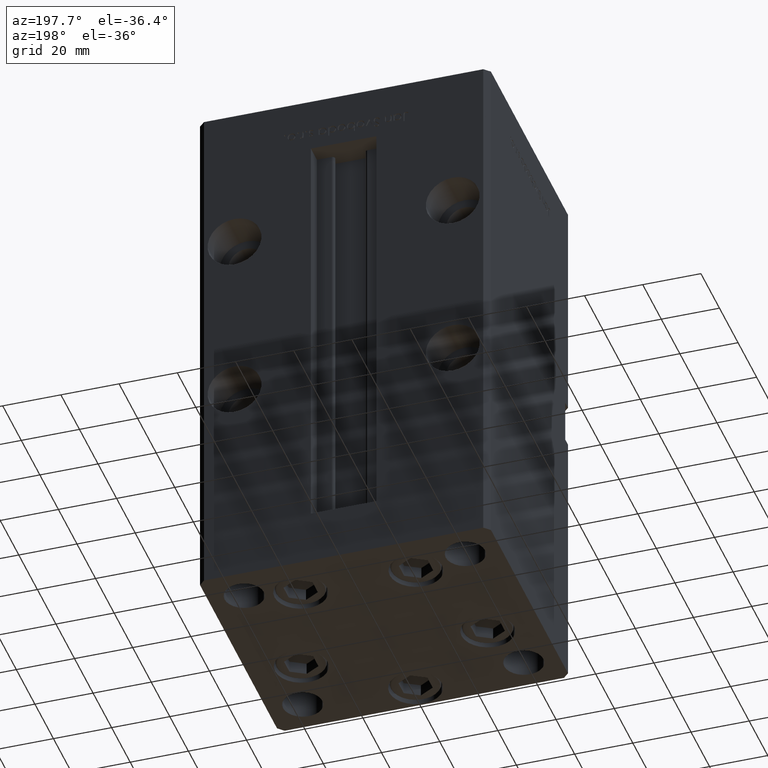
[diagram: clean part render]
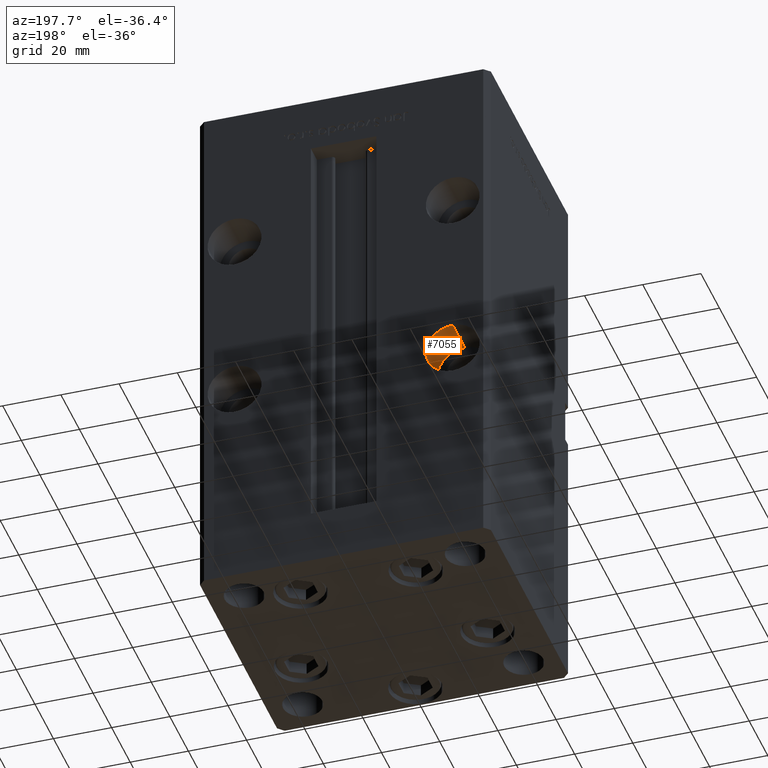
[diagram: same view with one face highlighted and labeled with its STEP entity id]
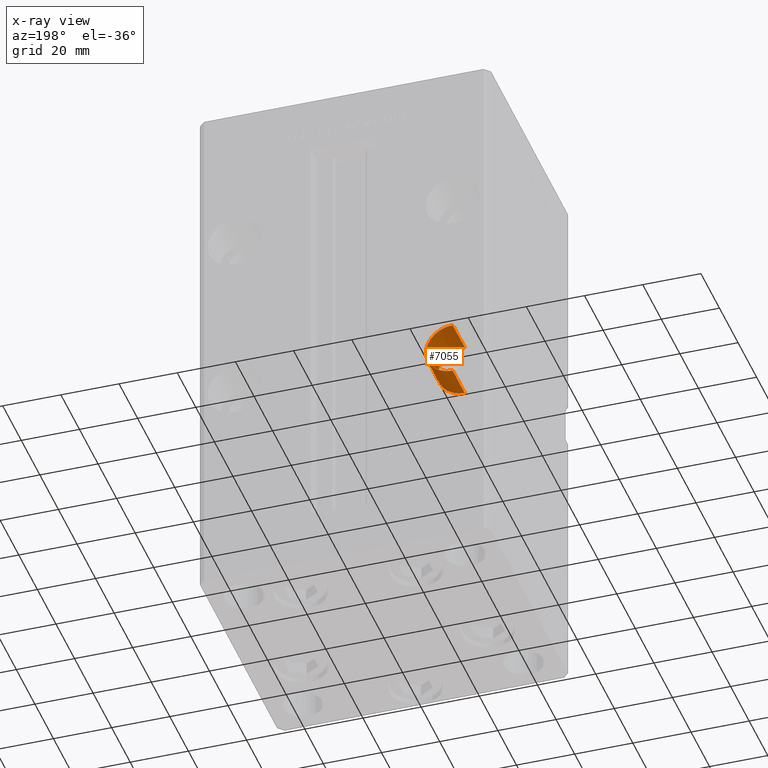
[diagram: x-ray of the same camera — body ghosted, the highlighted face saturated]
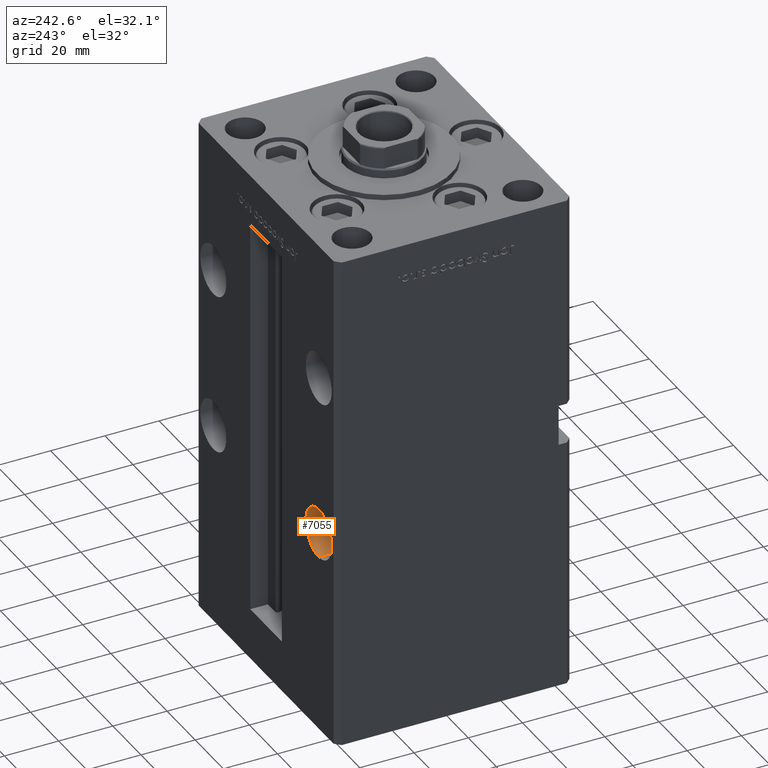
[diagram: same view with one face highlighted and labeled with its STEP entity id]
A machine part, auxiliary view. The second image highlights one B-rep face of the part: STEP entity #7055.
The next image is the same camera in x-ray: the body ghosted, the highlighted face saturated — about 0% of this face is hidden behind the body in this view.
A second angle (auxiliary view) of the same face is appended — the face is thin or edge-on in the first view.
In plain terms, the highlighted cylindrical surface (edge-blend (fillet) strip) has radius 9.25 mm, axis along (0, 1, 0).
Its self-contained STEP definition (entity closure, byte-faithful):
#2099 = CIRCLE ( 'NONE', #3801, 9.250000000000001776 ) ;
#2806 = CARTESIAN_POINT ( 'NONE',  ( -37.50000000000000000, 43.50000000000000000, 65.74999999999998579 ) ) ;
#3702 = CYLINDRICAL_SURFACE ( 'NONE', #8141, 9.250000000000001776 ) ;
#3801 = AXIS2_PLACEMENT_3D ( 'NONE', #42377, #46690, #38612 ) ;
#4863 = EDGE_CURVE ( 'NONE', #8392, #7354, #2099, .T. ) ;
#6209 = LINE ( 'NONE', #47342, #25883 ) ;
#7055 = ADVANCED_FACE ( 'NONE', ( #27905 ), #3702, .F. ) ;
#7354 = VERTEX_POINT ( 'NONE', #7926 ) ;
#7894 = DIRECTION ( 'NONE',  ( -0.000000000000000000, 1.000000000000000000, -0.000000000000000000 ) ) ;
#7926 = CARTESIAN_POINT ( 'NONE',  ( -37.50000000000000000, 43.50000000000000000, 47.24999999999998579 ) ) ;
#8141 = AXIS2_PLACEMENT_3D ( 'NONE', #41059, #49124, #23601 ) ;
#8288 = CIRCLE ( 'NONE', #23714, 9.250000000000001776 ) ;
#8312 = VERTEX_POINT ( 'NONE', #22690 ) ;
#8392 = VERTEX_POINT ( 'NONE', #2806 ) ;
#9310 = EDGE_LOOP ( 'NONE', ( #22858, #51792, #35438, #19609 ) ) ;
#10511 = DIRECTION ( 'NONE',  ( -0.000000000000000000, 1.000000000000000000, -0.000000000000000000 ) ) ;
#11414 = LINE ( 'NONE', #44990, #29497 ) ;
#12064 = EDGE_CURVE ( 'NONE', #8312, #14537, #8288, .T. ) ;
#13741 = DIRECTION ( 'NONE',  ( 0.000000000000000000, 0.000000000000000000, 1.000000000000000000 ) ) ;
#14537 = VERTEX_POINT ( 'NONE', #35773 ) ;
#19609 = ORIENTED_EDGE ( 'NONE', *, *, #4863, .T. ) ;
#19629 = EDGE_CURVE ( 'NONE', #8312, #8392, #11414, .T. ) ;
#21531 = DIRECTION ( 'NONE',  ( 0.000000000000000000, 1.000000000000000000, 0.000000000000000000 ) ) ;
#22690 = CARTESIAN_POINT ( 'NONE',  ( -37.50000000000000000, 30.50000000000000000, 65.74999999999998579 ) ) ;
#22858 = ORIENTED_EDGE ( 'NONE', *, *, #51015, .F. ) ;
#23601 = DIRECTION ( 'NONE',  ( 0.000000000000000000, 0.000000000000000000, 1.000000000000000000 ) ) ;
#23714 = AXIS2_PLACEMENT_3D ( 'NONE', #46543, #21531, #13741 ) ;
#25883 = VECTOR ( 'NONE', #10511, 1000.000000000000000 ) ;
#27905 = FACE_OUTER_BOUND ( 'NONE', #9310, .T. ) ;
#29497 = VECTOR ( 'NONE', #7894, 1000.000000000000000 ) ;
#35438 = ORIENTED_EDGE ( 'NONE', *, *, #19629, .T. ) ;
#35773 = CARTESIAN_POINT ( 'NONE',  ( -37.50000000000000000, 30.50000000000000000, 47.24999999999998579 ) ) ;
#38612 = DIRECTION ( 'NONE',  ( 0.000000000000000000, 0.000000000000000000, 1.000000000000000000 ) ) ;
#41059 = CARTESIAN_POINT ( 'NONE',  ( -37.50000000000000000, 30.50000000000000000, 56.49999999999998579 ) ) ;
#42377 = CARTESIAN_POINT ( 'NONE',  ( -37.50000000000000000, 43.50000000000000000, 56.49999999999998579 ) ) ;
#44990 = CARTESIAN_POINT ( 'NONE',  ( -37.50000000000000000, 30.50000000000000000, 65.74999999999998579 ) ) ;
#46543 = CARTESIAN_POINT ( 'NONE',  ( -37.50000000000000000, 30.50000000000000000, 56.49999999999998579 ) ) ;
#46690 = DIRECTION ( 'NONE',  ( 0.000000000000000000, 1.000000000000000000, 0.000000000000000000 ) ) ;
#47342 = CARTESIAN_POINT ( 'NONE',  ( -37.50000000000000000, 30.50000000000000000, 47.24999999999998579 ) ) ;
#49124 = DIRECTION ( 'NONE',  ( -0.000000000000000000, 1.000000000000000000, -0.000000000000000000 ) ) ;
#51015 = EDGE_CURVE ( 'NONE', #14537, #7354, #6209, .T. ) ;
#51792 = ORIENTED_EDGE ( 'NONE', *, *, #12064, .F. ) ;